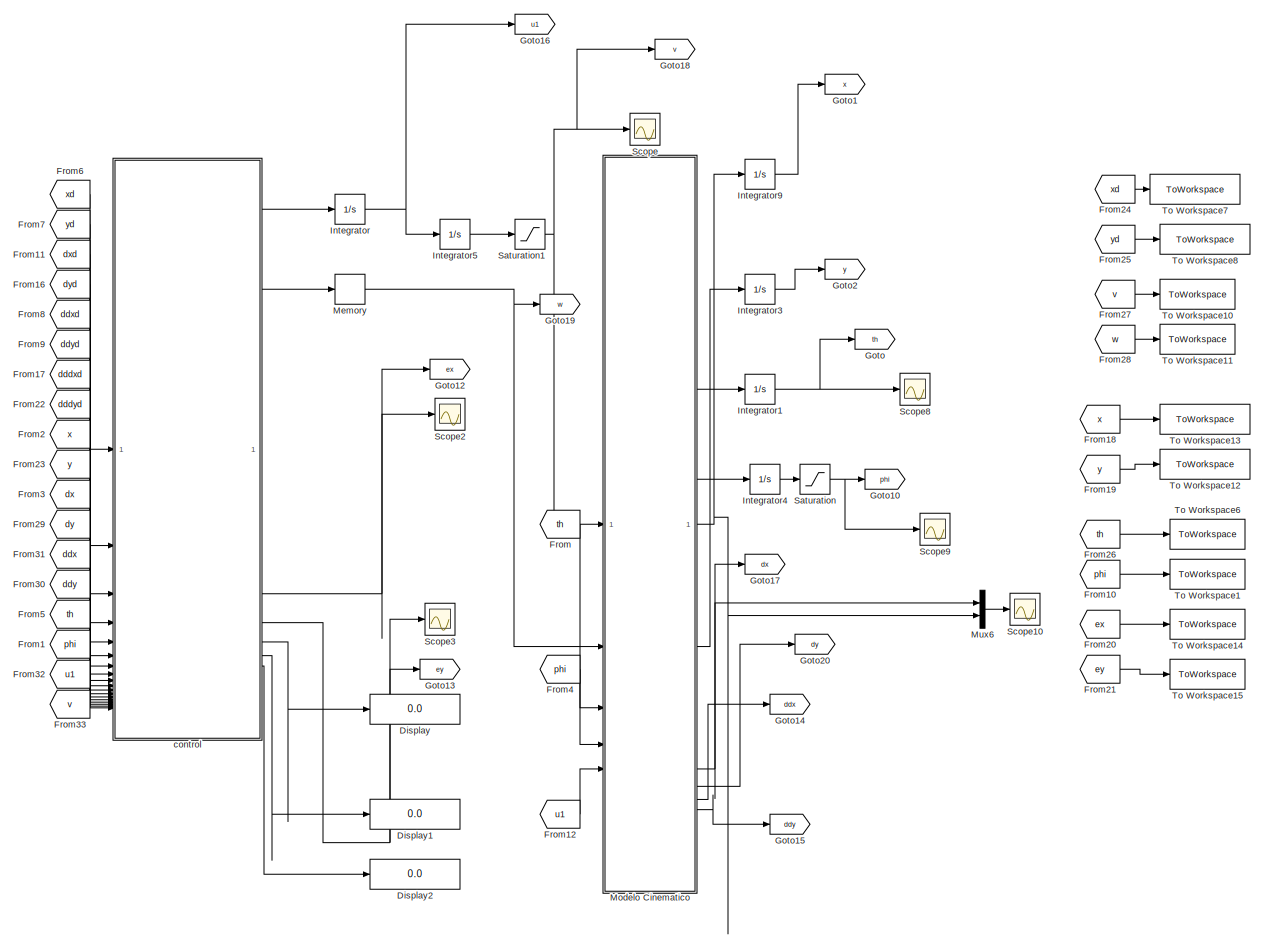
[diagram: root canvas - part 1/2, most of the canvas]
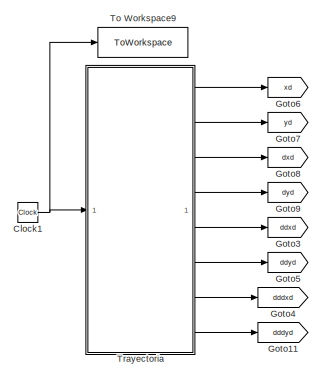
[diagram: root canvas - part 2/2, middle left region]
MODEL slx_45aa8dd380b3
KIND model
CONFIG AbsTol = auto
CONFIG EnableMultiTasking = off
CONFIG FixedStep = 0.02
CONFIG MaxStep = auto
CONFIG MinStep = auto
CONFIG RelTol = 1e-3
CONFIG SampleTimeConstraint = Unconstrained
CONFIG SolverName = ode4
CONFIG StartTime = 0.0
CONFIG StopTime = 140
BLOCK [Clock] Clock1
BLOCK [Display] Display
  Decimation = 1
BLOCK [Display] Display1
  Decimation = 1
BLOCK [Display] Display2
  Decimation = 1
BLOCK [From] From
  GotoTag = th
BLOCK [From] From1
  GotoTag = phi
BLOCK [From] From10
  GotoTag = phi
BLOCK [From] From11
  GotoTag = dxd
BLOCK [From] From12
  GotoTag = u1
BLOCK [From] From16
  GotoTag = dyd
BLOCK [From] From17
  GotoTag = dddxd
BLOCK [From] From18
  GotoTag = x
BLOCK [From] From19
  GotoTag = y
BLOCK [From] From2
  GotoTag = x
BLOCK [From] From20
  GotoTag = ex
BLOCK [From] From21
  GotoTag = ey
BLOCK [From] From22
  GotoTag = dddyd
BLOCK [From] From23
  GotoTag = y
BLOCK [From] From24
  GotoTag = xd
BLOCK [From] From25
  GotoTag = yd
BLOCK [From] From26
  GotoTag = th
BLOCK [From] From27
  GotoTag = v
BLOCK [From] From28
  GotoTag = w
BLOCK [From] From29
  GotoTag = dy
BLOCK [From] From3
  GotoTag = dx
BLOCK [From] From30
  GotoTag = ddy
BLOCK [From] From31
  GotoTag = ddx
BLOCK [From] From32
  GotoTag = u1
BLOCK [From] From33
  GotoTag = v
BLOCK [From] From4
  GotoTag = phi
BLOCK [From] From5
  GotoTag = th
BLOCK [From] From6
  GotoTag = xd
BLOCK [From] From7
  GotoTag = yd
BLOCK [From] From8
  GotoTag = ddxd
BLOCK [From] From9
  GotoTag = ddyd
BLOCK [Goto] Goto
  GotoTag = th
BLOCK [Goto] Goto1
  GotoTag = x
BLOCK [Goto] Goto10
  GotoTag = phi
BLOCK [Goto] Goto11
  GotoTag = dddyd
BLOCK [Goto] Goto12
  GotoTag = ex
BLOCK [Goto] Goto13
  GotoTag = ey
BLOCK [Goto] Goto14
  GotoTag = ddx
BLOCK [Goto] Goto15
  GotoTag = ddy
BLOCK [Goto] Goto16
  GotoTag = u1
BLOCK [Goto] Goto17
  GotoTag = dx
BLOCK [Goto] Goto18
  GotoTag = v
BLOCK [Goto] Goto19
  GotoTag = w
BLOCK [Goto] Goto2
  GotoTag = y
BLOCK [Goto] Goto20
  GotoTag = dy
BLOCK [Goto] Goto3
  GotoTag = ddxd
BLOCK [Goto] Goto4
  GotoTag = dddxd
BLOCK [Goto] Goto5
  GotoTag = ddyd
BLOCK [Goto] Goto6
  GotoTag = xd
BLOCK [Goto] Goto7
  GotoTag = yd
BLOCK [Goto] Goto8
  GotoTag = dxd
BLOCK [Goto] Goto9
  GotoTag = dyd
BLOCK [Integrator] Integrator
BLOCK [Integrator] Integrator1
  InitialCondition = 1.58
BLOCK [Integrator] Integrator3
  InitialCondition = -0.11
BLOCK [Integrator] Integrator4
BLOCK [Integrator] Integrator5
  InitialCondition = 0.07
BLOCK [Integrator] Integrator9
  InitialCondition = 1.38
BLOCK [Memory] Memory
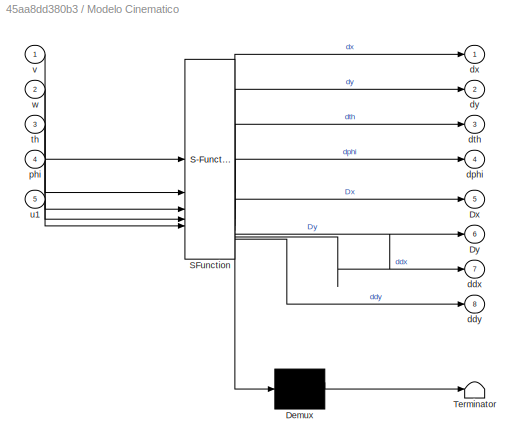
BLOCK [SubSystem] Modelo Cinematico
  ErrorFcn = Stateflow.Translate.translate
  PermitHierarchicalResolution = ExplicitOnly
  SFBlockType = MATLAB Function
  TreatAsAtomicUnit = on
BLOCK [Demux] Modelo Cinematico/ Demux 
  Outputs = 1
BLOCK [S-Function] Modelo Cinematico/ SFunction 
  EnableBusSupport = on
  FunctionName = sf_sfun
  PortCounts = [5 9]
  SFcnIsStateOwnerBlock = off
  SFunctionDeploymentMode = off
  Tag = Stateflow S-Function 5
BLOCK [Terminator] Modelo Cinematico/ Terminator 
BLOCK [Outport] Modelo Cinematico/Dx
  Port = 5
BLOCK [Outport] Modelo Cinematico/Dy
  Port = 6
BLOCK [Outport] Modelo Cinematico/ddx
  Port = 7
BLOCK [Outport] Modelo Cinematico/ddy
  Port = 8
BLOCK [Outport] Modelo Cinematico/dphi
  Port = 4
BLOCK [Outport] Modelo Cinematico/dth
  Port = 3
BLOCK [Outport] Modelo Cinematico/dx
BLOCK [Outport] Modelo Cinematico/dy
  Port = 2
BLOCK [Inport] Modelo Cinematico/phi
  Port = 4
BLOCK [Inport] Modelo Cinematico/th
  Port = 3
BLOCK [Inport] Modelo Cinematico/u1
  Port = 5
BLOCK [Inport] Modelo Cinematico/v
BLOCK [Inport] Modelo Cinematico/w
  Port = 2
BLOCK [Mux] Mux6
  DisplayOption = bar
  Inputs = 2
BLOCK [Saturate] Saturation
  LowerLimit = -0.4
  UpperLimit = 0.38
BLOCK [Saturate] Saturation1
  LowerLimit = 0.01
  UpperLimit = 1.0
BLOCK [Scope] Scope
  Floating = off
  NumInputPorts = 1
  ScopeSpecificationString = Simulink.scopes.TimeScopeBlockCfg('CurrentConfiguration', extmgr.ConfigurationSet(extmgr.Configuration('Core','General UI',true),extmgr.Configuration('Core','Source UI',true),extmgr.Configuration('Sources','WiredSimulink',true,'DataLoggingVariableName','ScopeData1'),extmgr.Configuration('Visuals','Time Domain',true,'SerializedDisplays',{struct('MinYLimReal','0.17931','MaxYLimReal','0.38625','YLabe...<+1466ch>
BLOCK [Scope] Scope10
  Floating = off
  NumInputPorts = 1
  ScopeSpecificationString = Simulink.scopes.TimeScopeBlockCfg('CurrentConfiguration', extmgr.ConfigurationSet(extmgr.Configuration('Core','General UI',true),extmgr.Configuration('Core','Source UI',true),extmgr.Configuration('Sources','WiredSimulink',true,'DataLoggingVariableName','ScopeData1'),extmgr.Configuration('Visuals','Time Domain',true,'SerializedDisplays',{struct('MinYLimReal','-0.16056','MaxYLimReal','0.15916','YLab...<+1454ch>
BLOCK [Scope] Scope2
  Floating = off
  NumInputPorts = 1
  ScopeSpecificationString = Simulink.scopes.TimeScopeBlockCfg('CurrentConfiguration', extmgr.ConfigurationSet(extmgr.Configuration('Core','General UI',true),extmgr.Configuration('Core','Source UI',true),extmgr.Configuration('Sources','WiredSimulink',true,'DataLoggingVariableName','ScopeData3'),extmgr.Configuration('Visuals','Time Domain',true,'SerializedDisplays',{struct('MinYLimReal','-4.25411','MaxYLimReal','31.80024','YLa...<+1425ch>
BLOCK [Scope] Scope3
  Floating = off
  NumInputPorts = 1
  ScopeSpecificationString = Simulink.scopes.TimeScopeBlockCfg('CurrentConfiguration', extmgr.ConfigurationSet(extmgr.Configuration('Core','General UI',true),extmgr.Configuration('Core','Source UI',true),extmgr.Configuration('Sources','WiredSimulink',true),extmgr.Configuration('Visuals','Time Domain',true,'SerializedDisplays',{struct('MinYLimReal','-8.56237','MaxYLimReal','10.44074','YLabelReal','','MinYLimMag','0.00000','Max...<+1386ch>
BLOCK [Scope] Scope8
  Floating = off
  NumInputPorts = 1
  ScopeSpecificationString = Simulink.scopes.TimeScopeBlockCfg('CurrentConfiguration', extmgr.ConfigurationSet(extmgr.Configuration('Core','General UI',true),extmgr.Configuration('Core','Source UI',true),extmgr.Configuration('Sources','WiredSimulink',true,'DataLoggingVariableName','ScopeData6'),extmgr.Configuration('Visuals','Time Domain',true,'SerializedDisplays',{struct('MinYLimReal','-3.11811','MaxYLimReal','14.50365','YLa...<+1426ch>
BLOCK [Scope] Scope9
  Floating = off
  NumInputPorts = 1
  ScopeSpecificationString = Simulink.scopes.TimeScopeBlockCfg('CurrentConfiguration', extmgr.ConfigurationSet(extmgr.Configuration('Core','General UI',true),extmgr.Configuration('Core','Source UI',true),extmgr.Configuration('Sources','WiredSimulink',true,'DataLoggingVariableName','ScopeData7'),extmgr.Configuration('Visuals','Time Domain',true,'SerializedDisplays',{struct('MinYLimReal','-0.45312','MaxYLimReal','0.45813','YLab...<+1421ch>
BLOCK [ToWorkspace] To Workspace1
  FixptAsFi = on
  MaxDataPoints = inf
  SampleTime = -1
  SaveFormat = Structure
  VariableName = phiSim
BLOCK [ToWorkspace] To Workspace10
  FixptAsFi = on
  MaxDataPoints = inf
  SampleTime = -1
  SaveFormat = Structure
  VariableName = vSim
BLOCK [ToWorkspace] To Workspace11
  FixptAsFi = on
  MaxDataPoints = inf
  SampleTime = -1
  SaveFormat = Structure
  VariableName = wSim
BLOCK [ToWorkspace] To Workspace12
  FixptAsFi = on
  MaxDataPoints = inf
  SampleTime = -1
  SaveFormat = Structure
  VariableName = ypSim
BLOCK [ToWorkspace] To Workspace13
  FixptAsFi = on
  MaxDataPoints = inf
  SampleTime = -1
  SaveFormat = Structure
  VariableName = xpSim
BLOCK [ToWorkspace] To Workspace14
  FixptAsFi = on
  MaxDataPoints = inf
  SampleTime = -1
  SaveFormat = Structure
  VariableName = exSim
BLOCK [ToWorkspace] To Workspace15
  FixptAsFi = on
  MaxDataPoints = inf
  SampleTime = -1
  SaveFormat = Structure
  VariableName = eySim
BLOCK [ToWorkspace] To Workspace6
  FixptAsFi = on
  MaxDataPoints = inf
  SampleTime = -1
  SaveFormat = Structure
  VariableName = thSim
BLOCK [ToWorkspace] To Workspace7
  FixptAsFi = on
  MaxDataPoints = inf
  SampleTime = -1
  SaveFormat = Structure
  VariableName = xdSim
BLOCK [ToWorkspace] To Workspace8
  FixptAsFi = on
  MaxDataPoints = inf
  SampleTime = -1
  SaveFormat = Structure
  VariableName = ydSim
BLOCK [ToWorkspace] To Workspace9
  FixptAsFi = on
  MaxDataPoints = inf
  SampleTime = -1
  SaveFormat = Structure
  VariableName = timeSim
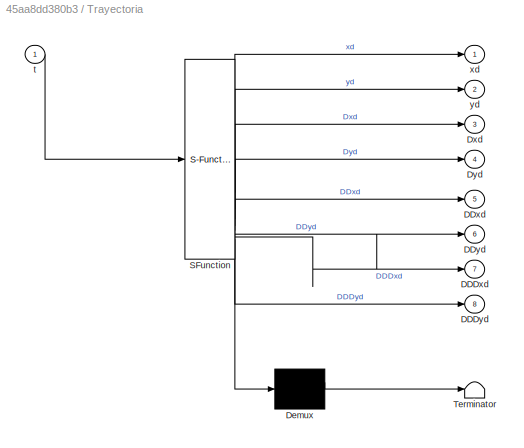
BLOCK [SubSystem] Trayectoria
  ErrorFcn = Stateflow.Translate.translate
  PermitHierarchicalResolution = ExplicitOnly
  SFBlockType = MATLAB Function
  TreatAsAtomicUnit = on
BLOCK [Demux] Trayectoria/ Demux 
  Outputs = 1
BLOCK [S-Function] Trayectoria/ SFunction 
  EnableBusSupport = on
  FunctionName = sf_sfun
  PortCounts = [1 9]
  SFcnIsStateOwnerBlock = off
  SFunctionDeploymentMode = off
  Tag = Stateflow S-Function 6
BLOCK [Terminator] Trayectoria/ Terminator 
BLOCK [Outport] Trayectoria/DDDxd
  Port = 7
BLOCK [Outport] Trayectoria/DDDyd
  Port = 8
BLOCK [Outport] Trayectoria/DDxd
  Port = 5
BLOCK [Outport] Trayectoria/DDyd
  Port = 6
BLOCK [Outport] Trayectoria/Dxd
  Port = 3
BLOCK [Outport] Trayectoria/Dyd
  Port = 4
BLOCK [Inport] Trayectoria/t
BLOCK [Outport] Trayectoria/xd
BLOCK [Outport] Trayectoria/yd
  Port = 2
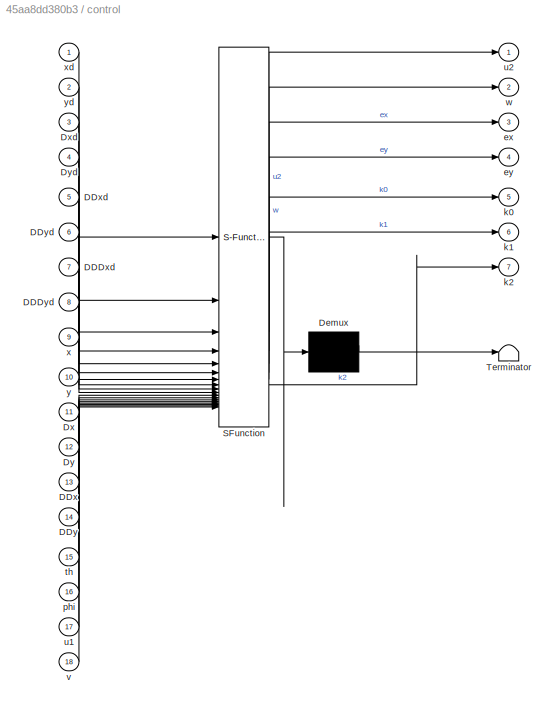
BLOCK [SubSystem] control
  ErrorFcn = Stateflow.Translate.translate
  PermitHierarchicalResolution = ExplicitOnly
  SFBlockType = MATLAB Function
  TreatAsAtomicUnit = on
BLOCK [Demux] control/ Demux 
  Outputs = 1
BLOCK [S-Function] control/ SFunction 
  EnableBusSupport = on
  FunctionName = sf_sfun
  PortCounts = [18 8]
  SFcnIsStateOwnerBlock = off
  SFunctionDeploymentMode = off
  Tag = Stateflow S-Function 7
BLOCK [Terminator] control/ Terminator 
BLOCK [Inport] control/DDDxd
  Port = 7
BLOCK [Inport] control/DDDyd
  Port = 8
BLOCK [Inport] control/DDx
  Port = 13
BLOCK [Inport] control/DDxd
  Port = 5
BLOCK [Inport] control/DDy
  Port = 14
BLOCK [Inport] control/DDyd
  Port = 6
BLOCK [Inport] control/Dx
  Port = 11
BLOCK [Inport] control/Dxd
  Port = 3
BLOCK [Inport] control/Dy
  Port = 12
BLOCK [Inport] control/Dyd
  Port = 4
BLOCK [Outport] control/ex
  Port = 3
BLOCK [Outport] control/ey
  Port = 4
BLOCK [Outport] control/k0
  Port = 5
BLOCK [Outport] control/k1
  Port = 6
BLOCK [Outport] control/k2
  Port = 7
BLOCK [Inport] control/phi
  Port = 16
BLOCK [Inport] control/th
  Port = 15
BLOCK [Inport] control/u1
  Port = 17
BLOCK [Outport] control/u2
BLOCK [Inport] control/v
  Port = 18
BLOCK [Outport] control/w
  Port = 2
BLOCK [Inport] control/x
  Port = 9
BLOCK [Inport] control/xd
BLOCK [Inport] control/y
  Port = 10
BLOCK [Inport] control/yd
  Port = 2
NET Clock1:1 -> To Workspace9:1, Trayectoria:1
LINE From10:1 -> To Workspace1:1
LINE From11:1 -> control:3
LINE From12:1 -> Modelo Cinematico:5
LINE From16:1 -> control:4
LINE From17:1 -> control:7
LINE From18:1 -> To Workspace13:1
LINE From19:1 -> To Workspace12:1
LINE From1:1 -> control:16
LINE From20:1 -> To Workspace14:1
LINE From21:1 -> To Workspace15:1
LINE From22:1 -> control:8
LINE From23:1 -> control:10
LINE From24:1 -> To Workspace7:1
LINE From25:1 -> To Workspace8:1
LINE From26:1 -> To Workspace6:1
LINE From27:1 -> To Workspace10:1
LINE From28:1 -> To Workspace11:1
LINE From29:1 -> control:12
LINE From2:1 -> control:9
LINE From30:1 -> control:14
LINE From31:1 -> control:13
LINE From32:1 -> control:17
LINE From33:1 -> control:18
LINE From3:1 -> control:11
LINE From4:1 -> Modelo Cinematico:4
LINE From5:1 -> control:15
LINE From6:1 -> control:1
LINE From7:1 -> control:2
LINE From8:1 -> control:5
LINE From9:1 -> control:6
LINE From:1 -> Modelo Cinematico:3
NET Integrator1:1 -> Goto:1, Scope8:1
LINE Integrator3:1 -> Goto2:1
LINE Integrator4:1 -> Saturation:1
LINE Integrator5:1 -> Saturation1:1
LINE Integrator9:1 -> Goto1:1
NET Integrator:1 -> Goto16:1, Integrator5:1
NET Memory:1 -> Goto19:1, Modelo Cinematico:2
NET Modelo Cinematico:1 -> Integrator9:1, Mux6:2
LINE Modelo Cinematico:2 -> Integrator3:1
LINE Modelo Cinematico:3 -> Integrator1:1
LINE Modelo Cinematico:4 -> Integrator4:1
NET Modelo Cinematico:5 -> Goto17:1, Mux6:1
LINE Modelo Cinematico:6 -> Goto20:1
LINE Modelo Cinematico:7 -> Goto14:1
LINE Modelo Cinematico:8 -> Goto15:1
LINE Mux6:1 -> Scope10:1
NET Saturation1:1 -> Goto18:1, Modelo Cinematico:1, Scope:1
NET Saturation:1 -> Goto10:1, Scope9:1
LINE Trayectoria:1 -> Goto6:1
LINE Trayectoria:2 -> Goto7:1
LINE Trayectoria:3 -> Goto8:1
LINE Trayectoria:4 -> Goto9:1
LINE Trayectoria:5 -> Goto3:1
LINE Trayectoria:6 -> Goto5:1
LINE Trayectoria:7 -> Goto4:1
LINE Trayectoria:8 -> Goto11:1
LINE control:1 -> Integrator:1
LINE control:2 -> Memory:1
NET control:3 -> Goto12:1, Scope2:1
NET control:4 -> Goto13:1, Scope3:1
LINE control:5 -> Display:1
LINE control:6 -> Display1:1
LINE control:7 -> Display2:1
note: NET lines group one-source signal fan-out (src -> all destinations, sorted); 1:1 wires keep LINE
CHART Modelo Cinematico states=1 transitions=1
  STATE_LABEL 'eML_blk_kernel()'
  STATE_LABEL 'SCRIPT:\nfunction [dx,dy,dth,dphi,Dx,Dy,ddx,ddy]  = fcn(v,w,th,phi,u1)\n\n%%%%%%%%%%%%%% MATRIZ DE DESACOPLAMIENTO %%%%%%%%%%%%%%%%%%%%%55\nl=0.26;\n%vf=v/cos(phi);\ndx=v*cos(th);\ndy=v*sin(th);\ndth=v*tan(phi)/l;\ndphi=w;\n\nDx = v*cos(th);\nDy = v*sin(th);\nddx=u1*cos(th)-v*v*tan(phi)*sin(th)/l;\nddy=u1*sin(th)+v*v*tan(phi)*cos(th)/l;\n\n'
CHART Trayectoria states=1 transitions=1
  STATE_LABEL 'eML_blk_kernel()'
  STATE_LABEL 'SCRIPT:\nfunction [xd,yd,Dxd,Dyd,DDxd,DDyd,DDDxd,DDDyd]   = fcn(t)\nT=70;\nf=1/T;\nw=2*pi*f;\n\n\nr = 1.3;\n\nxd=(r)*cos(w*t);\nDxd=(-r)*w*sin(w*t);\nDDxd=(-r)*w*w*cos(w*t);\nDDDxd=(r)*w*w*w*sin(w*t);\n% \nyd=(r)*sin(w*t);\nDyd=(r)*w*cos(w*t);\nDDyd=(-r)*w*w*sin(w*t);\nDDDyd=(-r)*w*w*w*cos(w*t);\n\n'
CHART control states=1 transitions=1
  STATE_LABEL 'eML_blk_kernel()'
  STATE_LABEL 'SCRIPT:\nfunction [u2,w,ex,ey,k0,k1,k2 ]   = fcn(xd,yd,Dxd,Dyd,DDxd,DDyd,DDDxd,DDDyd,x,y,Dx,Dy,DDx,DDy,th,phi,u1,v)\nl=0.26;\n%% Matriz de desacoplamiento\nA=[cos(th), -v*v*sin(th)*(1+(tan(phi)*tan(phi)))/l;\n   sin(th),  v*v*cos(th)*(1+(tan(phi)*tan(phi)))/l];\n%% Matriz de compensanción\nB=[-(3*v*u1*sin(th)*tan(phi)/l)-v*v*v*cos(th)*tan(phi)*tan(phi)/(l*l);\n   (3*v*u1*cos(th)*tan(phi)/l)-v*v*v*sin(th)*...<+539ch>'
CHART  states=0 transitions=0
CHART  states=0 transitions=0
CHART  states=0 transitions=0
